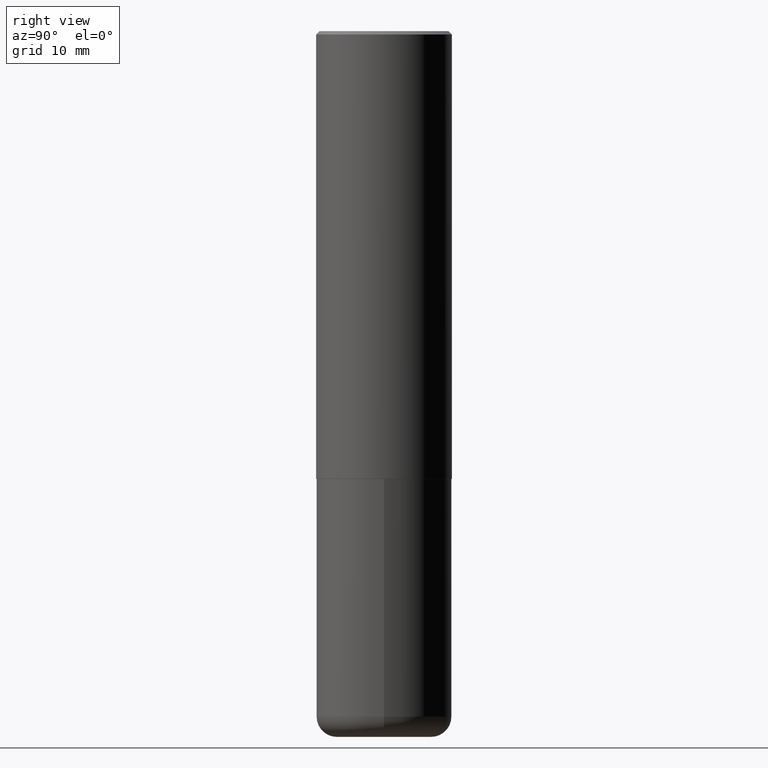
[diagram: clean part render]
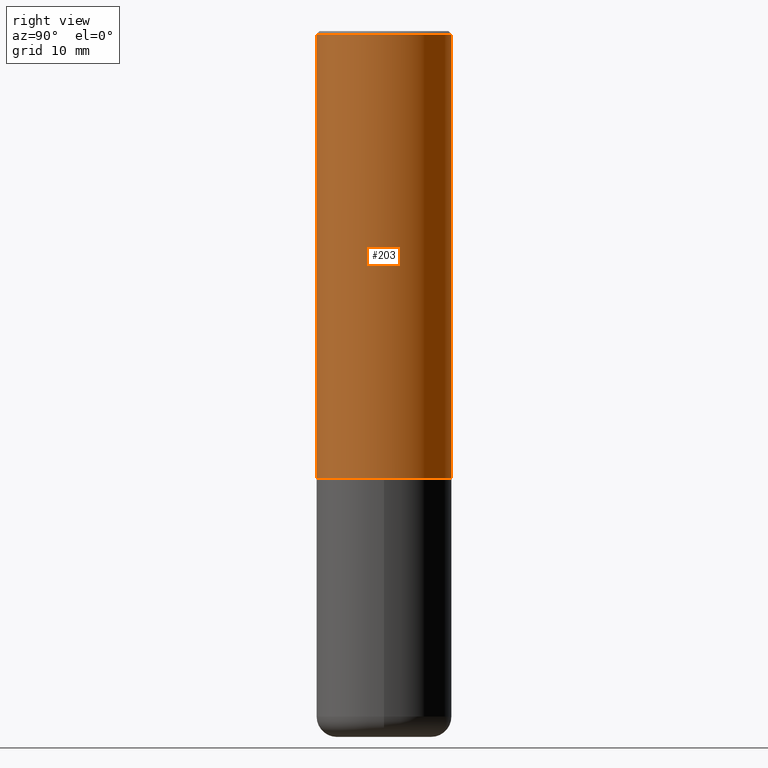
[diagram: same view with one face highlighted and labeled with its STEP entity id]
A machine part, right view. The second image highlights one B-rep face of the part: STEP entity #203.
In plain terms, the highlighted cylindrical surface (partial cylindrical patch) has radius 10 mm, axis along (-0, 0, 1).
Its self-contained STEP definition (entity closure, byte-faithful):
#13 = DIRECTION ( 'NONE',  ( -6.982962677686265922E-15, -1.000000000000000000, 3.488245283905469194E-15 ) ) ;
#16 = DIRECTION ( 'NONE',  ( -6.982962677686265922E-15, -1.000000000000000000, 4.163344669033672479E-15 ) ) ;
#17 = CARTESIAN_POINT ( 'NONE',  ( 0.000000000000000000, 0.000000000000000000, 0.000000000000000000 ) ) ;
#30 = VERTEX_POINT ( 'NONE', #342 ) ;
#42 = DIRECTION ( 'NONE',  ( -2.447728531270410110E-29, 3.488245283905469588E-15, 1.000000000000000000 ) ) ;
#71 = DIRECTION ( 'NONE',  ( -2.447728531270410110E-29, 3.488245283905469588E-15, 1.000000000000000000 ) ) ;
#96 = VECTOR ( 'NONE', #211, 39.37007874015748143 ) ;
#106 = LINE ( 'NONE', #275, #96 ) ;
#117 = CIRCLE ( 'NONE', #346, 0.3937000000000000499 ) ;
#148 = DIRECTION ( 'NONE',  ( -6.982962677686265133E-15, -1.000000000000000000, 3.491137977679279424E-15 ) ) ;
#149 = VERTEX_POINT ( 'NONE', #390 ) ;
#152 = ORIENTED_EDGE ( 'NONE', *, *, #188, .T. ) ;
#153 = CARTESIAN_POINT ( 'NONE',  ( -2.700978061722651252E-15, -0.3937000000000001054, -0.01999999999999870978 ) ) ;
#181 = EDGE_CURVE ( 'NONE', #149, #356, #106, .T. ) ;
#188 = EDGE_CURVE ( 'NONE', #149, #30, #295, .T. ) ;
#189 = LINE ( 'NONE', #414, #354 ) ;
#202 = ORIENTED_EDGE ( 'NONE', *, *, #320, .F. ) ;
#203 = ADVANCED_FACE ( 'NONE', ( #326 ), #298, .T. ) ;
#208 = CARTESIAN_POINT ( 'NONE',  ( 2.749192406205083217E-15, 0.3936999999999999389, -0.02000000000000146105 ) ) ;
#211 = DIRECTION ( 'NONE',  ( -2.447728531270410390E-29, 3.488245283905469982E-15, 1.000000000000000000 ) ) ;
#221 = DIRECTION ( 'NONE',  ( -2.447728531270410390E-29, 3.488245283905469982E-15, 1.000000000000000000 ) ) ;
#269 = AXIS2_PLACEMENT_3D ( 'NONE', #331, #71, #16 ) ;
#275 = CARTESIAN_POINT ( 'NONE',  ( -2.749192406205084005E-15, -0.3937000000000001609, 1.373322168273583828E-15 ) ) ;
#295 = CIRCLE ( 'NONE', #269, 0.3937000000000002720 ) ;
#298 = CYLINDRICAL_SURFACE ( 'NONE', #369, 0.3937000000000001609 ) ;
#313 = ORIENTED_EDGE ( 'NONE', *, *, #405, .T. ) ;
#315 = VERTEX_POINT ( 'NONE', #208 ) ;
#320 = EDGE_CURVE ( 'NONE', #356, #315, #117, .T. ) ;
#326 = FACE_OUTER_BOUND ( 'NONE', #365, .T. ) ;
#327 = DIRECTION ( 'NONE',  ( -2.447728531270410110E-29, 3.488245283905469588E-15, 1.000000000000000000 ) ) ;
#329 = CARTESIAN_POINT ( 'NONE',  ( 4.895457062540840994E-31, -6.976490567810969350E-17, -0.02000000000000008715 ) ) ;
#331 = CARTESIAN_POINT ( 'NONE',  ( 6.357730087121764723E-29, -9.060368300416068565E-15, -2.597400000000000375 ) ) ;
#342 = CARTESIAN_POINT ( 'NONE',  ( 2.797406750687547524E-15, 0.3936999999999912236, -2.597400000000002152 ) ) ;
#346 = AXIS2_PLACEMENT_3D ( 'NONE', #329, #42, #148 ) ;
#354 = VECTOR ( 'NONE', #221, 39.37007874015748143 ) ;
#356 = VERTEX_POINT ( 'NONE', #153 ) ;
#365 = EDGE_LOOP ( 'NONE', ( #152, #313, #202, #401 ) ) ;
#369 = AXIS2_PLACEMENT_3D ( 'NONE', #17, #327, #13 ) ;
#390 = CARTESIAN_POINT ( 'NONE',  ( -2.749192406205021291E-15, -0.3937000000000093758, -2.597399999999999043 ) ) ;
#401 = ORIENTED_EDGE ( 'NONE', *, *, #181, .F. ) ;
#405 = EDGE_CURVE ( 'NONE', #30, #315, #189, .T. ) ;
#414 = CARTESIAN_POINT ( 'NONE',  ( 2.797406750687515181E-15, 0.3937000000000001609, -1.373322168273583828E-15 ) ) ;